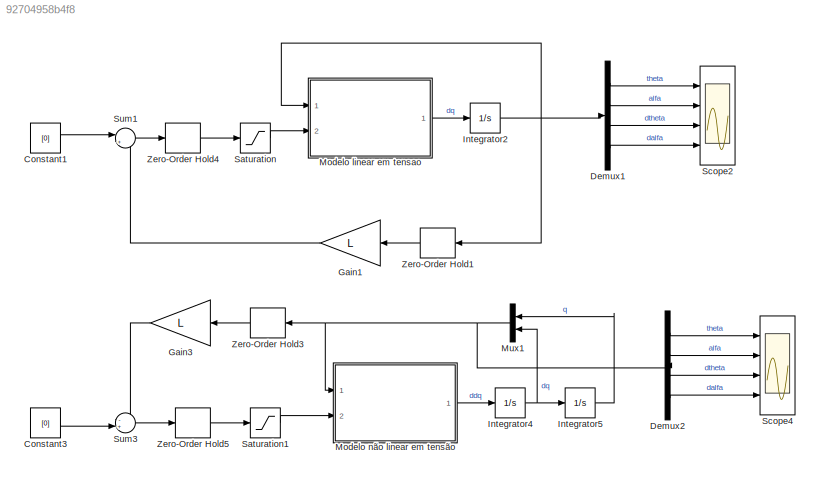
MODEL slx_92704958b4f8
KIND model
CONFIG AbsTol = auto
CONFIG EnableMultiTasking = off
CONFIG FixedStep = auto
CONFIG MaxStep = auto
CONFIG MinStep = auto
CONFIG RelTol = 1e-3
CONFIG SampleTimeConstraint = Unconstrained
CONFIG SolverName = VariableStepAuto
CONFIG StartTime = 0.0
CONFIG StopTime = 5
BLOCK [Constant] Constant1
  Value = [0]
BLOCK [Constant] Constant3
  Value = [0]
BLOCK [Demux] Demux1
  Ports = [1, 4]
BLOCK [Demux] Demux2
  Ports = [1, 4]
BLOCK [Gain] Gain1
  Gain = L
  Multiplication = Matrix(K*u) (u vector)
  NameLocation = top
BLOCK [Gain] Gain3
  Gain = L
  Multiplication = Matrix(K*u) (u vector)
  NameLocation = top
BLOCK [Integrator] Integrator2
  InitialCondition = [qi;0;0]
  Ports = [1, 1]
BLOCK [Integrator] Integrator4
  InitialCondition = [0;0]
  Ports = [1, 1]
BLOCK [Integrator] Integrator5
  InitialCondition = [qi]
  Ports = [1, 1]
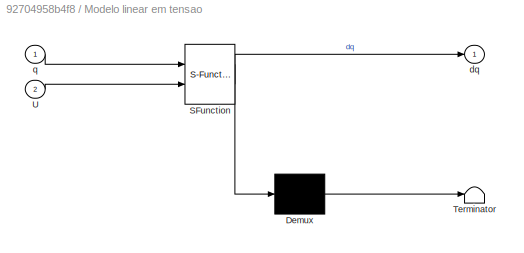
BLOCK [SubSystem] Modelo linear em tensao
  ErrorFcn = Stateflow.Translate.translate
  PermitHierarchicalResolution = ExplicitOnly
  Ports = [2, 1]
  RequestExecContextInheritance = off
  SFBlockType = MATLAB Function
  TreatAsAtomicUnit = on
BLOCK [Demux] Modelo linear em tensao/ Demux 
  Outputs = 1
  Ports = [1, 1]
BLOCK [S-Function] Modelo linear em tensao/ SFunction 
  EnableBusSupport = on
  FunctionName = sf_sfun
  PortCounts = [2 2]
  Ports = [2, 2]
  SFcnIsStateOwnerBlock = off
  SFunctionDeploymentMode = off
  Tag = Stateflow S-Function 1
BLOCK [Terminator] Modelo linear em tensao/ Terminator 
BLOCK [Inport] Modelo linear em tensao/U
  Port = 2
BLOCK [Outport] Modelo linear em tensao/dq
BLOCK [Inport] Modelo linear em tensao/q
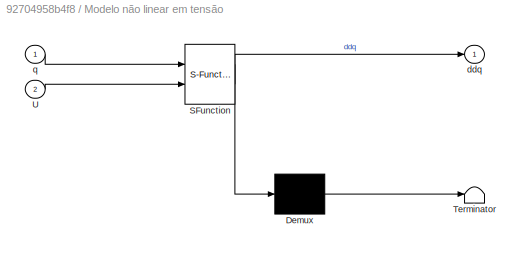
BLOCK [SubSystem] Modelo não linear em tensão
  ErrorFcn = Stateflow.Translate.translate
  PermitHierarchicalResolution = ExplicitOnly
  Ports = [2, 1]
  RequestExecContextInheritance = off
  SFBlockType = MATLAB Function
  TreatAsAtomicUnit = on
BLOCK [Demux] Modelo não linear em tensão/ Demux 
  Outputs = 1
  Ports = [1, 1]
BLOCK [S-Function] Modelo não linear em tensão/ SFunction 
  EnableBusSupport = on
  FunctionName = sf_sfun
  PortCounts = [2 2]
  Ports = [2, 2]
  SFcnIsStateOwnerBlock = off
  SFunctionDeploymentMode = off
  Tag = Stateflow S-Function 4
BLOCK [Terminator] Modelo não linear em tensão/ Terminator 
BLOCK [Inport] Modelo não linear em tensão/U
  Port = 2
BLOCK [Outport] Modelo não linear em tensão/ddq
BLOCK [Inport] Modelo não linear em tensão/q
BLOCK [Mux] Mux1
  DisplayOption = bar
  Inputs = 2
  NameLocation = top
  Ports = [2, 1]
BLOCK [Saturate] Saturation
  LowerLimit = -5
  UpperLimit = 5
BLOCK [Saturate] Saturation1
  LowerLimit = -5
  UpperLimit = 5
BLOCK [Scope] Scope2
  Floating = off
  NumInputPorts = 4
  Ports = [4]
  ScopeSpecificationString = Simulink.scopes.TimeScopeBlockCfg('CurrentConfiguration', extmgr.ConfigurationSet(extmgr.Configuration('Core','General UI',true,'FigureColor',[1 1 1]),extmgr.Configuration('Core','Source UI',true),extmgr.Configuration('Sources','WiredSimulink',true,'DataLoggingSaveFormat','StructureWithTime','DataLoggingVariableName','ScopeData3','DataLogging',true),extmgr.Configuration('Visuals','Time Domain',tru...<+2016ch>
BLOCK [Scope] Scope4
  Floating = off
  NumInputPorts = 4
  Ports = [4]
  ScopeSpecificationString = Simulink.scopes.TimeScopeBlockCfg('CurrentConfiguration', extmgr.ConfigurationSet(extmgr.Configuration('Core','General UI',true,'FigureColor',[1 1 1]),extmgr.Configuration('Core','Source UI',true),extmgr.Configuration('Sources','WiredSimulink',true,'DataLoggingSaveFormat','StructureWithTime','DataLoggingVariableName','ScopeData4','DataLogging',true),extmgr.Configuration('Visuals','Time Domain',tru...<+2012ch>
BLOCK [Sum] Sum1
  Inputs = |+-
  Ports = [2, 1]
BLOCK [Sum] Sum3
  Inputs = -+|
  Ports = [2, 1]
BLOCK [ZeroOrderHold] Zero-Order Hold1
  NameLocation = top
  SampleTime = h
BLOCK [ZeroOrderHold] Zero-Order Hold3
  NameLocation = top
  SampleTime = h
BLOCK [ZeroOrderHold] Zero-Order Hold4
  SampleTime = h
BLOCK [ZeroOrderHold] Zero-Order Hold5
  SampleTime = h
LINE Constant1:1 -> Sum1:1
LINE Constant3:1 -> Sum3:2
LINE Demux1:1 -> Scope2:1
LINE Demux1:2 -> Scope2:2
LINE Demux1:3 -> Scope2:3
LINE Demux1:4 -> Scope2:4
LINE Demux2:1 -> Scope4:1
LINE Demux2:2 -> Scope4:2
LINE Demux2:3 -> Scope4:3
LINE Demux2:4 -> Scope4:4
LINE Gain1:1 -> Sum1:2
LINE Gain3:1 -> Sum3:1
NET Integrator2:1 -> Demux1:1, Modelo linear em tensao:1, Zero-Order Hold1:1
NET Integrator4:1 -> Integrator5:1, Mux1:2
LINE Integrator5:1 -> Mux1:1
LINE Modelo linear em tensao:1 -> Integrator2:1
LINE Modelo não linear em tensão:1 -> Integrator4:1
NET Mux1:1 -> Demux2:1, Modelo não linear em tensão:1, Zero-Order Hold3:1
LINE Saturation1:1 -> Modelo não linear em tensão:2
LINE Saturation:1 -> Modelo linear em tensao:2
LINE Sum1:1 -> Zero-Order Hold4:1
LINE Sum3:1 -> Zero-Order Hold5:1
LINE Zero-Order Hold1:1 -> Gain1:1
LINE Zero-Order Hold3:1 -> Gain3:1
LINE Zero-Order Hold4:1 -> Saturation:1
LINE Zero-Order Hold5:1 -> Saturation1:1
note: NET lines group one-source signal fan-out (src -> all destinations, sorted); 1:1 wires keep LINE
CHART Modelo linear em tensao states=1 transitions=1
  STATE_LABEL 'eML_blk_kernel()'
  STATE_LABEL 'SCRIPT:\nfunction dq  = fcn(q,U)\n%parametros motor\nRm = 2.6;\nKm = 0.00767;\nKg = 70;\nmp = 0.126;\nLp = 0.33;\nlp = Lp/2;\nr = 0.22;\nJb = 0.0044;\ng = 9.8;\n\n% modelo linerar em tensão\nA = [0 0 1 0\n0 0 0 1\n0 -(mp*r*g)/Jb -((Km*Kg)^2)/(Rm*Jb) 0\n0 g*(Jb+(mp*(r^2)))/(lp*Jb) r*((Km*Kg)^2)/(Rm*Jb*lp) 0\n];\n\nB = [0;0;(Km*Kg)/(Rm*Jb);-r*(Km*Kg)/(Rm*lp*Jb)];\n\ndq = A*q+B.*U;\nend'
CHART Modelo não linear em tensão states=1 transitions=1
  STATE_LABEL 'eML_blk_kernel()'
  STATE_LABEL 'SCRIPT:\nfunction ddq  = fcn(q,U)\n%parametros motor\nRm = 2.6;\nKm = 0.00767;\nKg = 70;\nmp = 0.126;\nLp = 0.33;\nlp = Lp/2;\nr = 0.22;\nJb = 0.0044;\ng = 9.8;\n\ntheta=q(1);\nalfa=q(2);\ndtheta=q(3);\ndalfa=q(4);\n\na = Jb + mp*r^2;\nb = mp*r*lp*cos(alfa);\nc = mp*lp*r*cos(alfa);\nd = mp*lp^2;\nM = [a b;c d];\n\nVb = U;\nTb = (Kg*Km)*(Vb-Kg*Km*dtheta)/Rm;\n\na = -mp*r*dalfa^2*lp*sin(alfa);\nb = -mp*g*lp*sin(alfa); \nH = [a;...<+33ch>'
CHART  states=0 transitions=0
CHART  states=0 transitions=0
